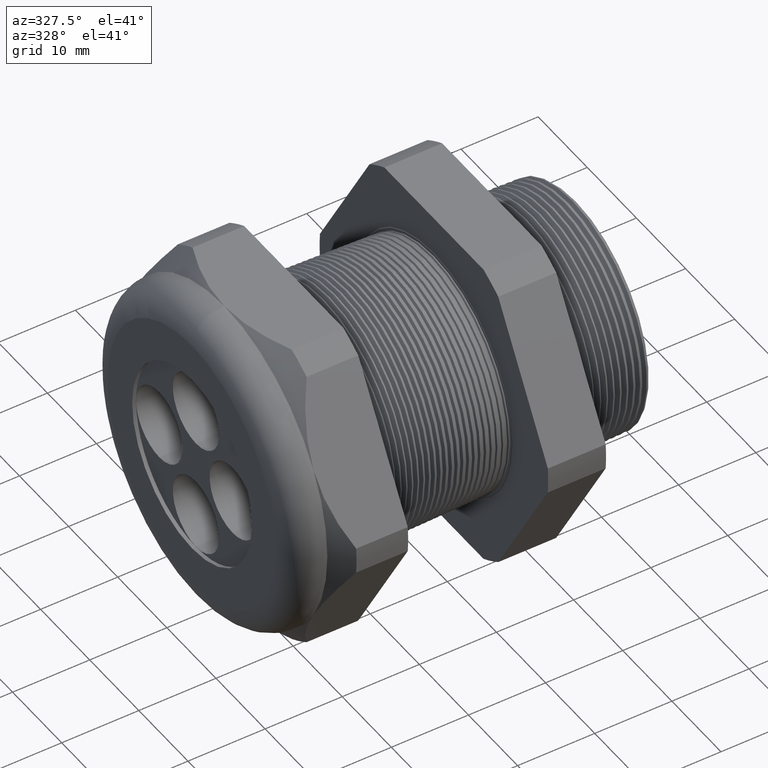
[diagram: clean part render]
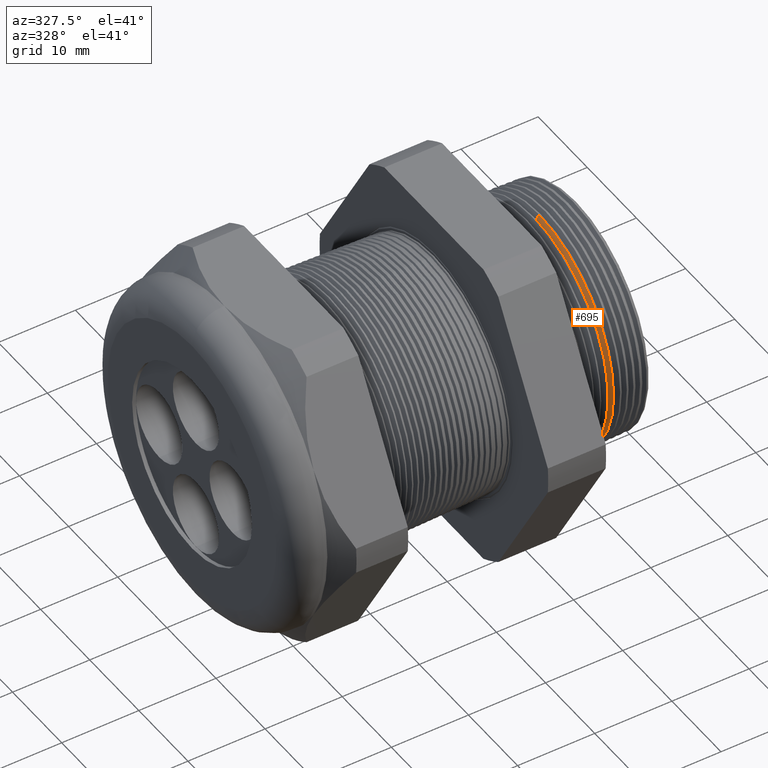
[diagram: same view with one face highlighted and labeled with its STEP entity id]
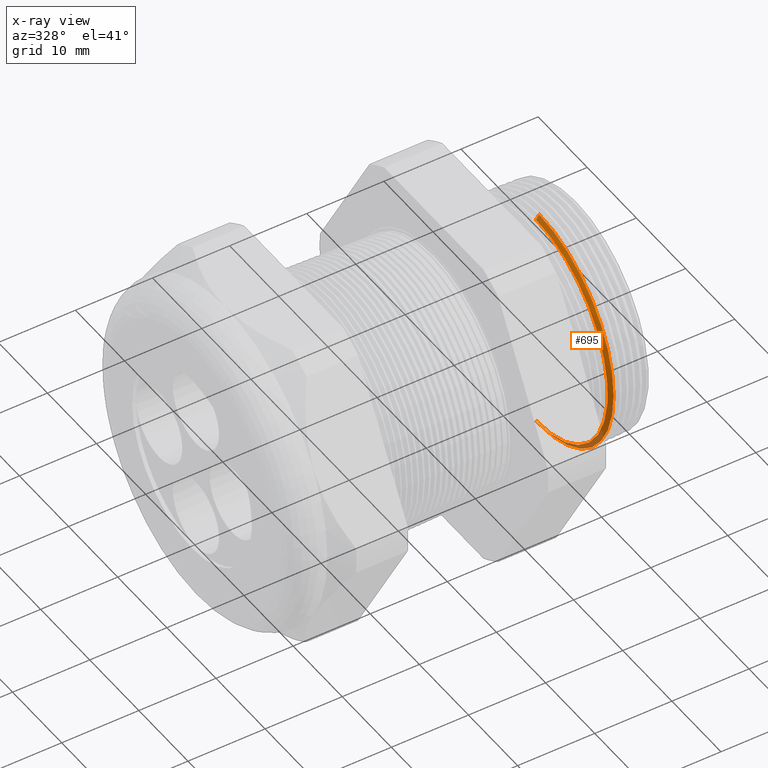
[diagram: x-ray of the same camera — body ghosted, the highlighted face saturated]
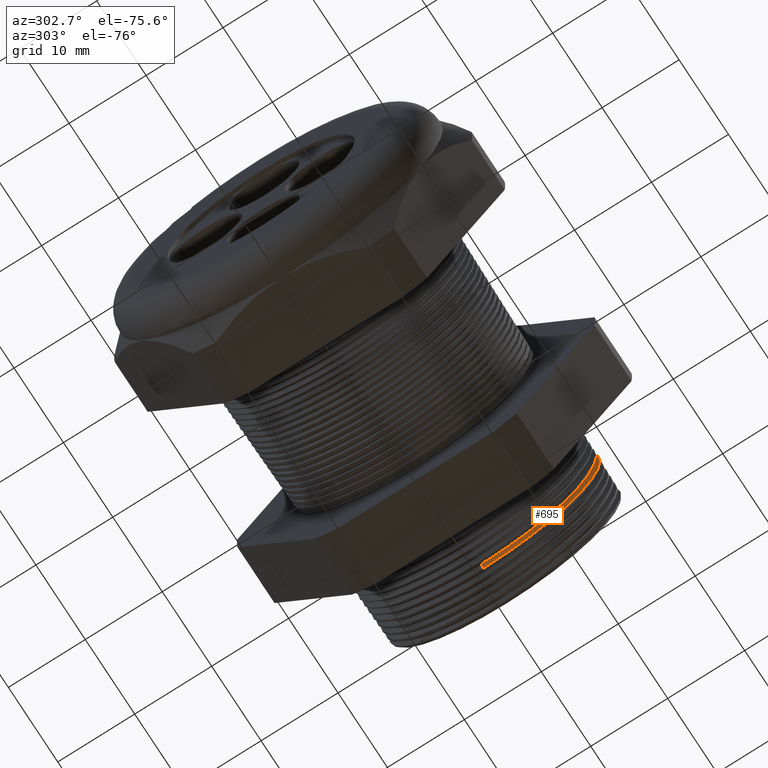
[diagram: same view with one face highlighted and labeled with its STEP entity id]
A machine part, auxiliary view. The second image highlights one B-rep face of the part: STEP entity #695.
The next image is the same camera in x-ray: the body ghosted, the highlighted face saturated — about 15% of this face is hidden behind the body in this view.
A second angle (auxiliary view) of the same face is appended — the face is thin or edge-on in the first view.
In plain terms, the highlighted conical surface has half-angle 58.5 deg.
Its self-contained STEP definition (entity closure, byte-faithful):
#692 = EDGE_CURVE ( 'NONE', #818, #824, #2316, .T. ) ;
#695 = ADVANCED_FACE ( 'NONE', ( #2307 ), #2306, .T. ) ;
#696 = EDGE_LOOP ( 'NONE', ( #697, #698, #751, #752 ) ) ;
#697 = ORIENTED_EDGE ( 'NONE', *, *, #812, .F. ) ;
#698 = ORIENTED_EDGE ( 'NONE', *, *, #692, .T. ) ;
#751 = ORIENTED_EDGE ( 'NONE', *, *, #881, .T. ) ;
#752 = ORIENTED_EDGE ( 'NONE', *, *, #7132, .T. ) ;
#811 = VERTEX_POINT ( 'NONE', #2529 ) ;
#812 = EDGE_CURVE ( 'NONE', #818, #813, #2528, .T. ) ;
#813 = VERTEX_POINT ( 'NONE', #2524 ) ;
#818 = VERTEX_POINT ( 'NONE', #2517 ) ;
#824 = VERTEX_POINT ( 'NONE', #2505 ) ;
#881 = EDGE_CURVE ( 'NONE', #824, #811, #2651, .T. ) ;
#2306 = CONICAL_SURFACE ( 'NONE', #2371, 0.5731008538869458700, 1.021017612416700100 ) ;
#2307 = FACE_OUTER_BOUND ( 'NONE', #696, .T. ) ;
#2308 = DIRECTION ( 'NONE',  ( 0.0000000000000000000, 0.0000000000000000000, -1.000000000000000000 ) ) ;
#2309 = DIRECTION ( 'NONE',  ( 1.000000000000000000, 0.0000000000000000000, 0.0000000000000000000 ) ) ;
#2310 = CARTESIAN_POINT ( 'NONE',  ( -0.08347073567907513400, 0.0000000000000000000, 0.0000000000000000000 ) ) ;
#2311 = AXIS2_PLACEMENT_3D ( 'NONE', #2310, #2309, #2308 ) ;
#2316 = CIRCLE ( 'NONE', #2311, 0.5731008538869458700 ) ;
#2368 = DIRECTION ( 'NONE',  ( 0.0000000000000000000, 0.0000000000000000000, -1.000000000000000000 ) ) ;
#2369 = DIRECTION ( 'NONE',  ( 1.000000000000000000, 0.0000000000000000000, 0.0000000000000000000 ) ) ;
#2370 = CARTESIAN_POINT ( 'NONE',  ( -0.08347073567907513400, 0.0000000000000000000, 0.0000000000000000000 ) ) ;
#2371 = AXIS2_PLACEMENT_3D ( 'NONE', #2370, #2369, #2368 ) ;
#2505 = CARTESIAN_POINT ( 'NONE',  ( -0.08347073567907513400, 7.170714021118400100E-017, -0.5731008538869458700 ) ) ;
#2517 = CARTESIAN_POINT ( 'NONE',  ( -0.08347073567907513400, 0.0000000000000000000, 0.5731008538869458700 ) ) ;
#2524 = CARTESIAN_POINT ( 'NONE',  ( -0.06868745204509418800, 0.0000000000000000000, 0.5972249802263697200 ) ) ;
#2525 = DIRECTION ( 'NONE',  ( 0.5224985647159341400, 1.044183048100723500E-016, 0.8526401643541011700 ) ) ;
#2526 = VECTOR ( 'NONE', #2525, 39.37007874015748100 ) ;
#2527 = CARTESIAN_POINT ( 'NONE',  ( -0.08347073567907513400, 7.018461263012631300E-017, 0.5731008538869458700 ) ) ;
#2528 = LINE ( 'NONE', #2527, #2526 ) ;
#2529 = CARTESIAN_POINT ( 'NONE',  ( -0.06868745204509418800, 7.313896604050650400E-017, -0.5972249802263697200 ) ) ;
#2644 = DIRECTION ( 'NONE',  ( 0.5224985647159341400, 0.0000000000000000000, -0.8526401643541011700 ) ) ;
#2645 = VECTOR ( 'NONE', #2644, 39.37007874015748100 ) ;
#2646 = CARTESIAN_POINT ( 'NONE',  ( -0.08347073567907513400, 0.0000000000000000000, -0.5731008538869458700 ) ) ;
#2651 = LINE ( 'NONE', #2646, #2645 ) ;
#5510 = DIRECTION ( 'NONE',  ( 0.0000000000000000000, 0.0000000000000000000, -1.000000000000000000 ) ) ;
#5511 = DIRECTION ( 'NONE',  ( -1.000000000000000000, 0.0000000000000000000, 0.0000000000000000000 ) ) ;
#5512 = CARTESIAN_POINT ( 'NONE',  ( -0.06868745204509418800, 0.0000000000000000000, 0.0000000000000000000 ) ) ;
#5513 = AXIS2_PLACEMENT_3D ( 'NONE', #5512, #5511, #5510 ) ;
#5514 = CIRCLE ( 'NONE', #5513, 0.5972249802263697200 ) ;
#7132 = EDGE_CURVE ( 'NONE', #811, #813, #5514, .T. ) ;